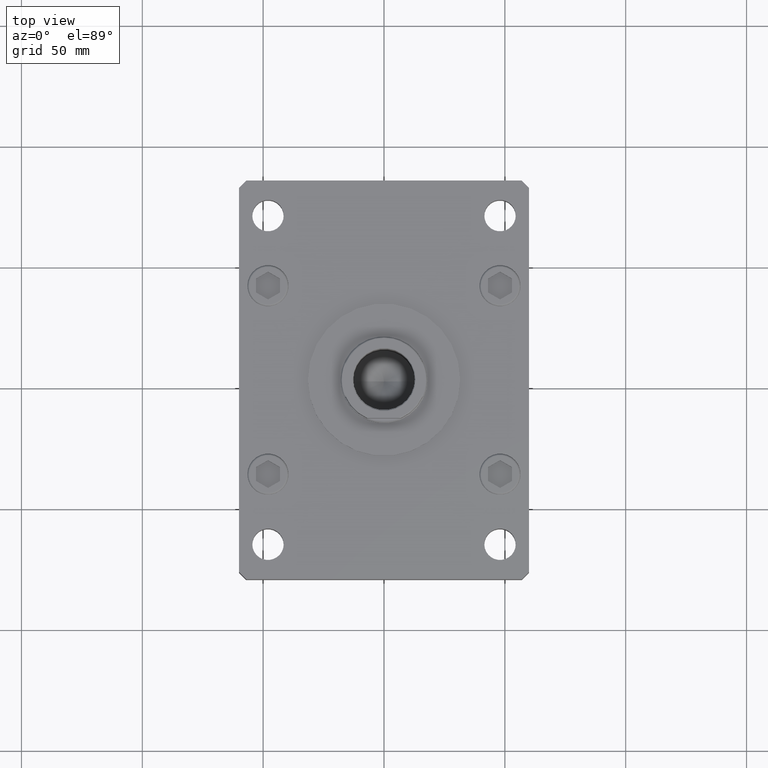
[diagram: clean part render]
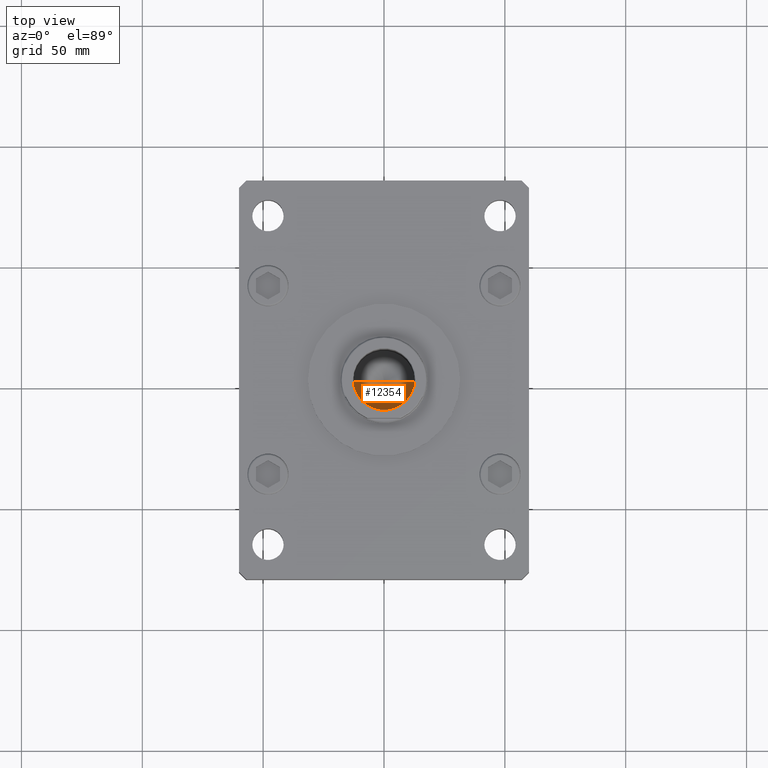
[diagram: same view with one face highlighted and labeled with its STEP entity id]
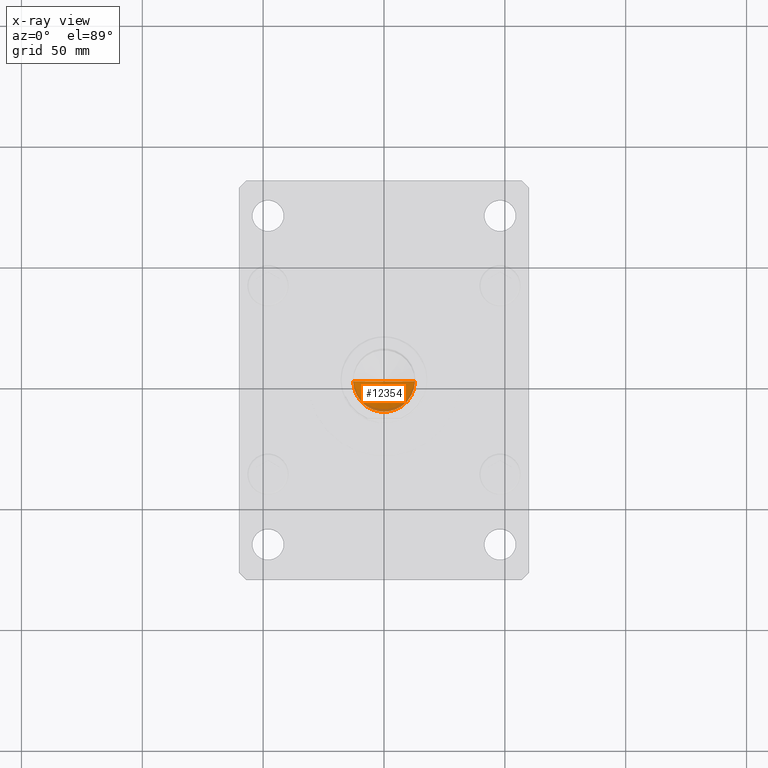
[diagram: x-ray of the same camera — body ghosted, the highlighted face saturated]
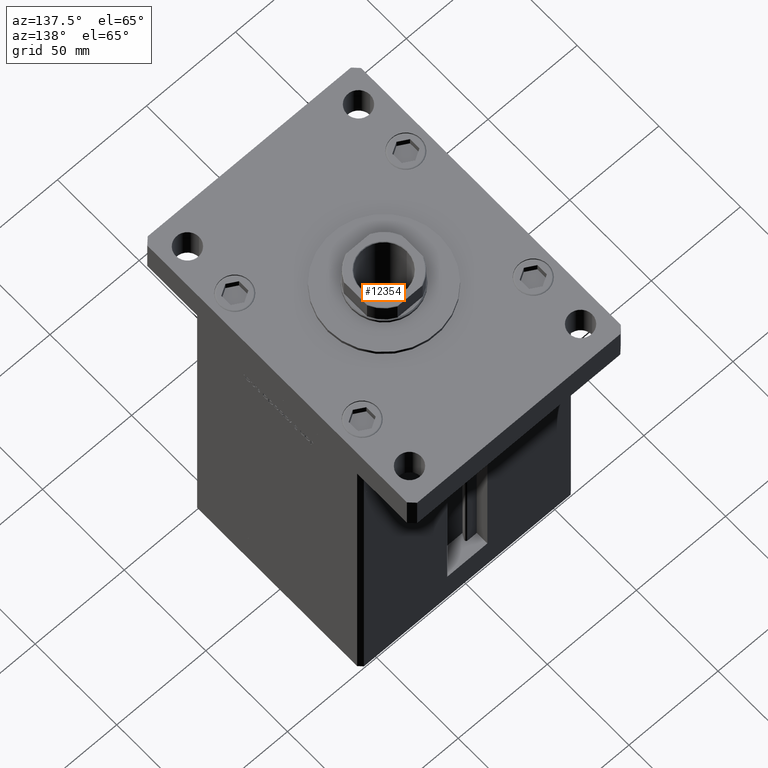
[diagram: same view with one face highlighted and labeled with its STEP entity id]
A machine part, top view. The second image highlights one B-rep face of the part: STEP entity #12354.
The next image is the same camera in x-ray: the body ghosted, the highlighted face saturated — about 8% of this face is hidden behind the body in this view.
A second angle (auxiliary view) of the same face is appended — the face is thin or edge-on in the first view.
In plain terms, the highlighted conical surface has half-angle 59 deg.
Its self-contained STEP definition (entity closure, byte-faithful):
#357 = FACE_OUTER_BOUND ( 'NONE', #3579, .T. ) ;
#1381 = VERTEX_POINT ( 'NONE', #26976 ) ;
#3579 = EDGE_LOOP ( 'NONE', ( #38496, #39285, #15126 ) ) ;
#3991 = DIRECTION ( 'NONE',  ( 1.000000000000000000, 0.000000000000000000, 0.000000000000000000 ) ) ;
#4842 = CARTESIAN_POINT ( 'NONE',  ( 12.74999999999999112, 0.000000000000000000, 144.2500000000000000 ) ) ;
#6308 = DIRECTION ( 'NONE',  ( 0.8571673007021125557, 0.000000000000000000, 0.5150380749100536004 ) ) ;
#8128 = EDGE_CURVE ( 'NONE', #1381, #33046, #13847, .T. ) ;
#8876 = CARTESIAN_POINT ( 'NONE',  ( 0.000000000000000000, 0.000000000000000000, 144.2500000000000000 ) ) ;
#10885 = EDGE_CURVE ( 'NONE', #26427, #33046, #11188, .T. ) ;
#11188 = LINE ( 'NONE', #27803, #15129 ) ;
#12354 = ADVANCED_FACE ( 'NONE', ( #357 ), #37709, .F. ) ;
#13847 = CIRCLE ( 'NONE', #34694, 12.74999999999999112 ) ;
#15126 = ORIENTED_EDGE ( 'NONE', *, *, #8128, .T. ) ;
#15129 = VECTOR ( 'NONE', #6308, 1000.000000000000114 ) ;
#22120 = AXIS2_PLACEMENT_3D ( 'NONE', #46572, #50926, #34329 ) ;
#24939 = DIRECTION ( 'NONE',  ( -0.000000000000000000, -0.000000000000000000, 1.000000000000000000 ) ) ;
#26427 = VERTEX_POINT ( 'NONE', #39256 ) ;
#26976 = CARTESIAN_POINT ( 'NONE',  ( -12.74999999999999112, 1.561424668912874125E-15, 144.2500000000000000 ) ) ;
#27803 = CARTESIAN_POINT ( 'NONE',  ( 12.74999999999999112, 0.000000000000000000, 144.2500000000000000 ) ) ;
#33046 = VERTEX_POINT ( 'NONE', #4842 ) ;
#34329 = DIRECTION ( 'NONE',  ( 1.000000000000000000, 0.000000000000000000, 0.000000000000000000 ) ) ;
#34694 = AXIS2_PLACEMENT_3D ( 'NONE', #8876, #24939, #3991 ) ;
#36711 = CARTESIAN_POINT ( 'NONE',  ( -12.74999999999999112, 1.561424668912874125E-15, 144.2500000000000000 ) ) ;
#37136 = VECTOR ( 'NONE', #49213, 1000.000000000000114 ) ;
#37709 = CONICAL_SURFACE ( 'NONE', #22120, 12.74999999999999112, 1.029744258676655200 ) ;
#38496 = ORIENTED_EDGE ( 'NONE', *, *, #10885, .F. ) ;
#39256 = CARTESIAN_POINT ( 'NONE',  ( -1.307202896762960287E-14, 0.000000000000000000, 136.5890271073986071 ) ) ;
#39285 = ORIENTED_EDGE ( 'NONE', *, *, #45723, .T. ) ;
#45723 = EDGE_CURVE ( 'NONE', #26427, #1381, #49491, .T. ) ;
#46572 = CARTESIAN_POINT ( 'NONE',  ( 0.000000000000000000, 0.000000000000000000, 144.2500000000000000 ) ) ;
#49213 = DIRECTION ( 'NONE',  ( -0.8571673007021125557, 1.049727191138618942E-16, 0.5150380749100536004 ) ) ;
#49491 = LINE ( 'NONE', #36711, #37136 ) ;
#50926 = DIRECTION ( 'NONE',  ( -0.000000000000000000, -0.000000000000000000, 1.000000000000000000 ) ) ;